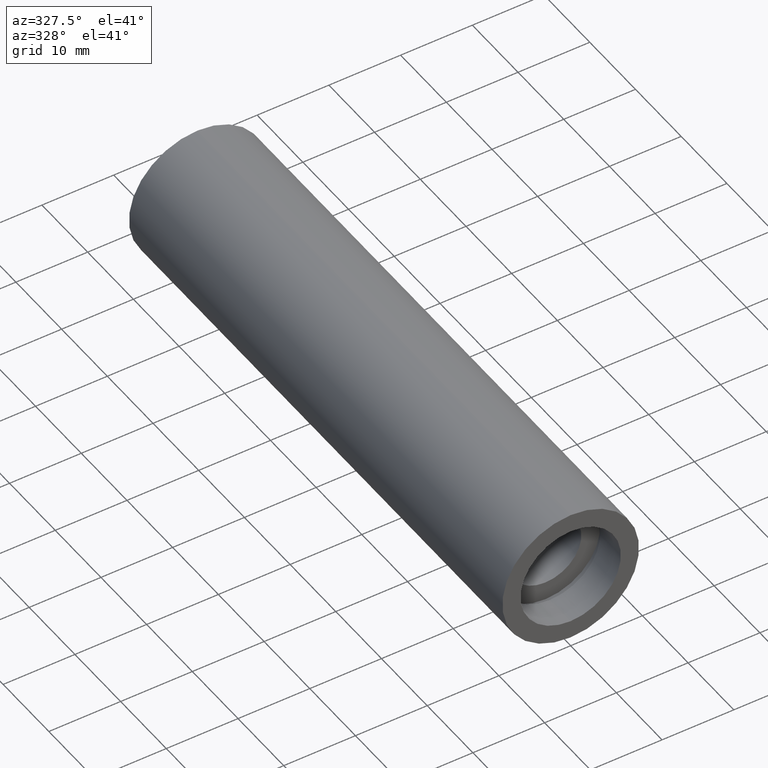
[diagram: clean part render]
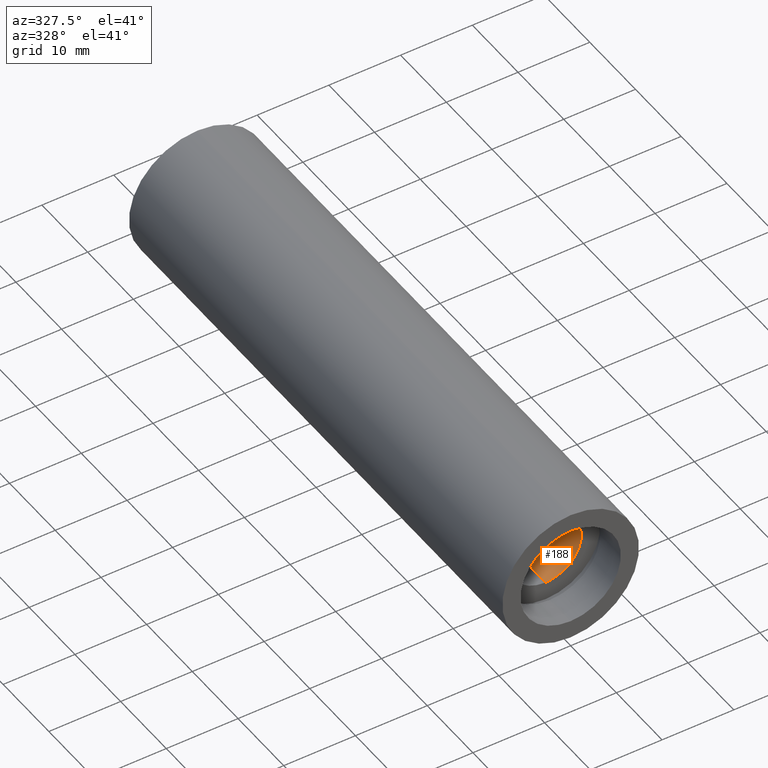
[diagram: same view with one face highlighted and labeled with its STEP entity id]
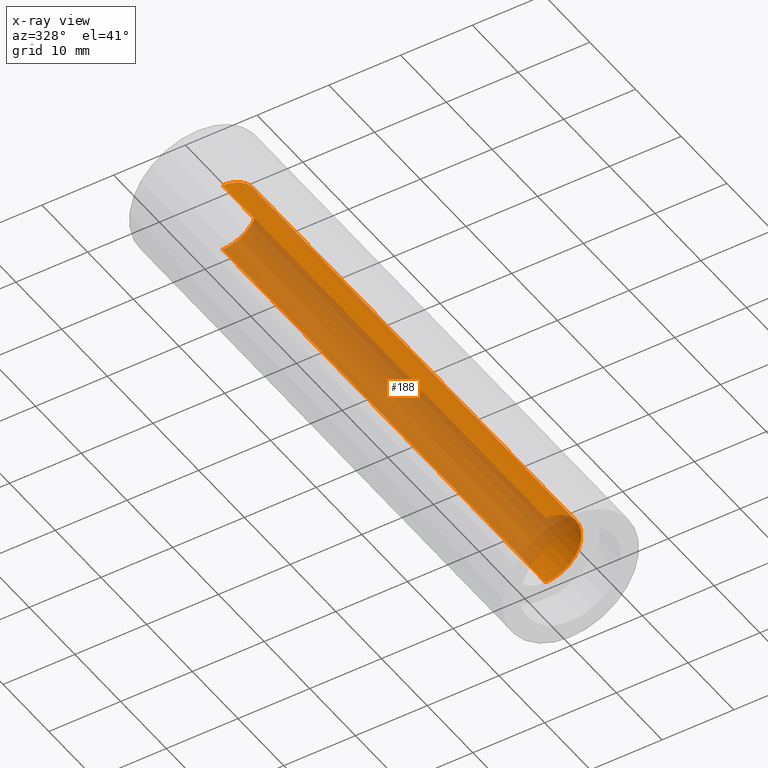
[diagram: x-ray of the same camera — body ghosted, the highlighted face saturated]
A machine part, auxiliary view. The second image highlights one B-rep face of the part: STEP entity #188.
The next image is the same camera in x-ray: the body ghosted, the highlighted face saturated — about 67% of this face is hidden behind the body in this view.
In plain terms, the highlighted cylindrical surface (partial cylindrical patch) has radius 5 mm, axis along (-0, 1, -0).
Its self-contained STEP definition (entity closure, byte-faithful):
#45 = EDGE_CURVE ( 'NONE', #529, #337, #321, .T. ) ;
#53 = ORIENTED_EDGE ( 'NONE', *, *, #415, .T. ) ;
#107 = DIRECTION ( 'NONE',  ( -0.0000000000000000000, 1.000000000000000000, -0.0000000000000000000 ) ) ;
#109 = CARTESIAN_POINT ( 'NONE',  ( 0.0000000000000000000, 161.3761669434274500, 0.0000000000000000000 ) ) ;
#128 = DIRECTION ( 'NONE',  ( -0.0000000000000000000, 1.000000000000000000, -0.0000000000000000000 ) ) ;
#131 = CARTESIAN_POINT ( 'NONE',  ( 0.0000000000000000000, 5.499999999999976900, 5.000000000000019500 ) ) ;
#135 = ORIENTED_EDGE ( 'NONE', *, *, #480, .T. ) ;
#144 = CIRCLE ( 'NONE', #489, 5.000000000000019500 ) ;
#154 = CARTESIAN_POINT ( 'NONE',  ( 6.123233995736789000E-016, 161.3761669434274500, -5.000000000000019500 ) ) ;
#182 = CARTESIAN_POINT ( 'NONE',  ( 0.0000000000000000000, 76.19999999999997400, 0.0000000000000000000 ) ) ;
#188 = ADVANCED_FACE ( 'NONE', ( #423 ), #602, .F. ) ;
#202 = AXIS2_PLACEMENT_3D ( 'NONE', #182, #378, #565 ) ;
#211 = VERTEX_POINT ( 'NONE', #594 ) ;
#247 = EDGE_CURVE ( 'NONE', #392, #529, #144, .T. ) ;
#253 = DIRECTION ( 'NONE',  ( -0.0000000000000000000, 1.000000000000000000, -0.0000000000000000000 ) ) ;
#298 = DIRECTION ( 'NONE',  ( 0.0000000000000000000, 0.0000000000000000000, 1.000000000000000000 ) ) ;
#300 = CARTESIAN_POINT ( 'NONE',  ( 6.123233995736789000E-016, 5.499999999999976900, -5.000000000000019500 ) ) ;
#302 = VECTOR ( 'NONE', #107, 1000.000000000000000 ) ;
#313 = CARTESIAN_POINT ( 'NONE',  ( 0.0000000000000000000, 5.499999999999976900, 0.0000000000000000000 ) ) ;
#316 = DIRECTION ( 'NONE',  ( 0.0000000000000000000, 0.0000000000000000000, 1.000000000000000000 ) ) ;
#321 = LINE ( 'NONE', #154, #302 ) ;
#332 = CARTESIAN_POINT ( 'NONE',  ( 0.0000000000000000000, 161.3761669434274500, 5.000000000000019500 ) ) ;
#335 = LINE ( 'NONE', #332, #424 ) ;
#337 = VERTEX_POINT ( 'NONE', #514 ) ;
#374 = AXIS2_PLACEMENT_3D ( 'NONE', #109, #253, #298 ) ;
#378 = DIRECTION ( 'NONE',  ( -0.0000000000000000000, 1.000000000000000000, -0.0000000000000000000 ) ) ;
#392 = VERTEX_POINT ( 'NONE', #131 ) ;
#409 = ORIENTED_EDGE ( 'NONE', *, *, #45, .F. ) ;
#415 = EDGE_CURVE ( 'NONE', #211, #337, #490, .T. ) ;
#423 = FACE_OUTER_BOUND ( 'NONE', #459, .T. ) ;
#424 = VECTOR ( 'NONE', #128, 1000.000000000000000 ) ;
#459 = EDGE_LOOP ( 'NONE', ( #409, #547, #135, #53 ) ) ;
#480 = EDGE_CURVE ( 'NONE', #392, #211, #335, .T. ) ;
#489 = AXIS2_PLACEMENT_3D ( 'NONE', #313, #508, #316 ) ;
#490 = CIRCLE ( 'NONE', #202, 5.000000000000019500 ) ;
#508 = DIRECTION ( 'NONE',  ( -0.0000000000000000000, 1.000000000000000000, -0.0000000000000000000 ) ) ;
#514 = CARTESIAN_POINT ( 'NONE',  ( 6.123233995736789000E-016, 76.19999999999997400, -5.000000000000019500 ) ) ;
#529 = VERTEX_POINT ( 'NONE', #300 ) ;
#547 = ORIENTED_EDGE ( 'NONE', *, *, #247, .F. ) ;
#565 = DIRECTION ( 'NONE',  ( 0.0000000000000000000, 0.0000000000000000000, 1.000000000000000000 ) ) ;
#594 = CARTESIAN_POINT ( 'NONE',  ( 0.0000000000000000000, 76.19999999999997400, 5.000000000000019500 ) ) ;
#602 = CYLINDRICAL_SURFACE ( 'NONE', #374, 5.000000000000019500 ) ;